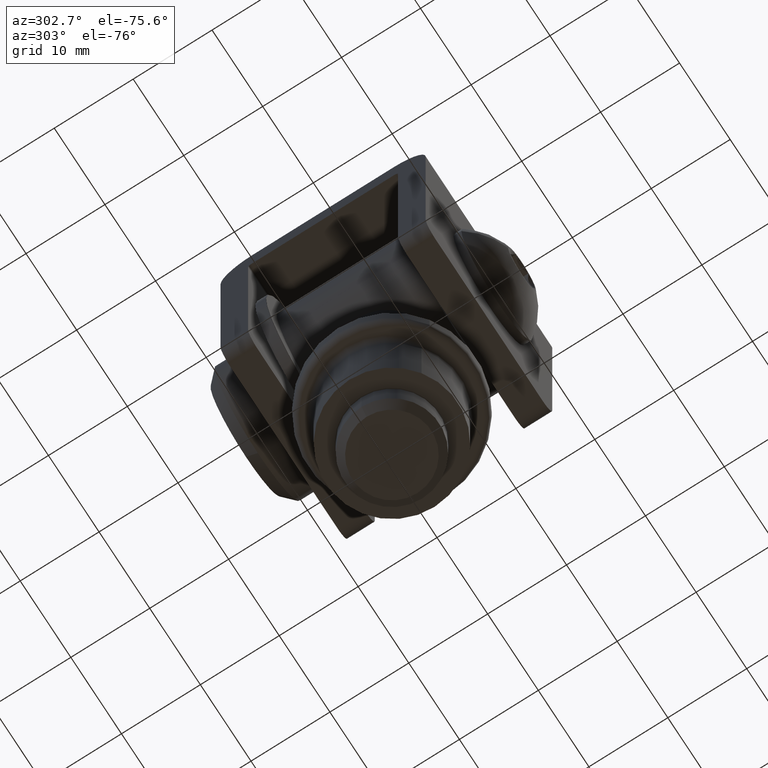
[diagram: clean part render]
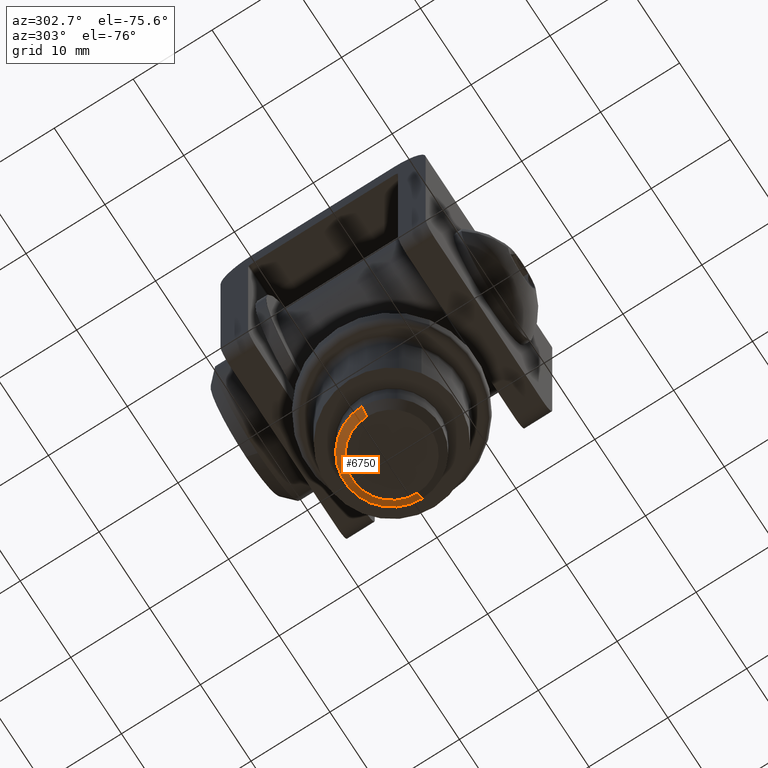
[diagram: same view with one face highlighted and labeled with its STEP entity id]
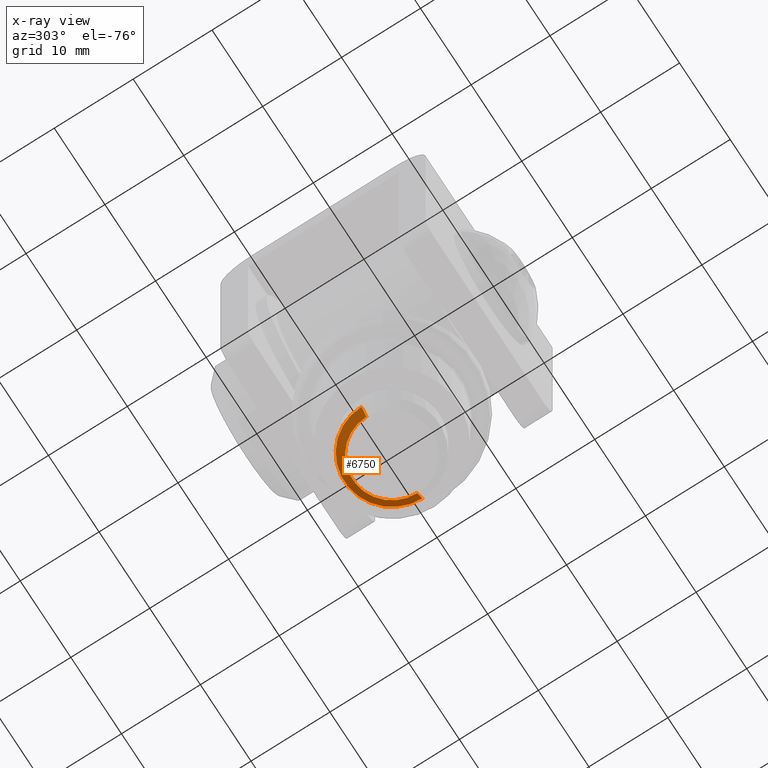
[diagram: x-ray of the same camera — body ghosted, the highlighted face saturated]
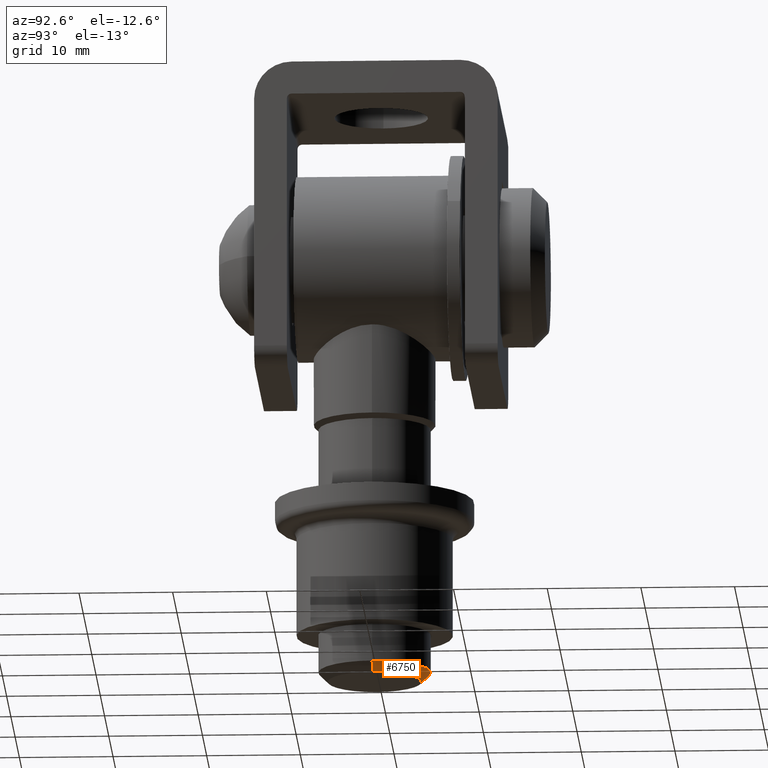
[diagram: same view with one face highlighted and labeled with its STEP entity id]
A machine part, auxiliary view. The second image highlights one B-rep face of the part: STEP entity #6750.
The next image is the same camera in x-ray: the body ghosted, the highlighted face saturated — about 0% of this face is hidden behind the body in this view.
A second angle (auxiliary view) of the same face is appended — the face is thin or edge-on in the first view.
In plain terms, the highlighted conical surface has half-angle 45 deg.
Its self-contained STEP definition (entity closure, byte-faithful):
#245 = CIRCLE ( 'NONE', #12365, 4.999999999999984900 ) ;
#518 = DIRECTION ( 'NONE',  ( 1.000000000000000000, 0.0000000000000000000, 0.0000000000000000000 ) ) ;
#570 = DIRECTION ( 'NONE',  ( -0.7071067811865531200, 8.659560562355001900E-017, 0.7071067811865420200 ) ) ;
#625 = CARTESIAN_POINT ( 'NONE',  ( 4.999999999999984900, 0.0000000000000000000, -45.10000000000000100 ) ) ;
#1516 = CARTESIAN_POINT ( 'NONE',  ( -6.000000000000000900, 0.0000000000000000000, -44.10000000000000100 ) ) ;
#1639 = CARTESIAN_POINT ( 'NONE',  ( -6.000000000000000900, 7.347880794884120700E-016, -44.10000000000000100 ) ) ;
#1670 = VECTOR ( 'NONE', #13945, 999.9999999999998900 ) ;
#1929 = DIRECTION ( 'NONE',  ( -0.0000000000000000000, -0.0000000000000000000, -1.000000000000000000 ) ) ;
#1966 = CONICAL_SURFACE ( 'NONE', #10739, 6.000000000000000900, 0.7853981633974560500 ) ;
#2714 = ORIENTED_EDGE ( 'NONE', *, *, #6615, .T. ) ;
#2807 = CARTESIAN_POINT ( 'NONE',  ( 6.000000000000000900, 0.0000000000000000000, -44.10000000000000100 ) ) ;
#3345 = ORIENTED_EDGE ( 'NONE', *, *, #13951, .F. ) ;
#3375 = EDGE_CURVE ( 'NONE', #9957, #13015, #245, .T. ) ;
#3918 = CARTESIAN_POINT ( 'NONE',  ( 0.0000000000000000000, 0.0000000000000000000, -44.10000000000000100 ) ) ;
#4103 = DIRECTION ( 'NONE',  ( -0.0000000000000000000, -0.0000000000000000000, 1.000000000000000000 ) ) ;
#4124 = EDGE_LOOP ( 'NONE', ( #12568, #2714, #8823, #3345 ) ) ;
#4312 = LINE ( 'NONE', #2807, #1670 ) ;
#5144 = CARTESIAN_POINT ( 'NONE',  ( 0.0000000000000000000, 0.0000000000000000000, -44.10000000000000100 ) ) ;
#5957 = LINE ( 'NONE', #1639, #13627 ) ;
#6615 = EDGE_CURVE ( 'NONE', #9957, #12499, #5957, .T. ) ;
#6750 = ADVANCED_FACE ( 'NONE', ( #11508 ), #1966, .T. ) ;
#7475 = DIRECTION ( 'NONE',  ( 1.000000000000000000, 0.0000000000000000000, 0.0000000000000000000 ) ) ;
#8577 = CARTESIAN_POINT ( 'NONE',  ( 0.0000000000000000000, 0.0000000000000000000, -45.10000000000000100 ) ) ;
#8823 = ORIENTED_EDGE ( 'NONE', *, *, #13986, .F. ) ;
#9580 = DIRECTION ( 'NONE',  ( 1.000000000000000000, 0.0000000000000000000, 0.0000000000000000000 ) ) ;
#9726 = VERTEX_POINT ( 'NONE', #12826 ) ;
#9840 = CARTESIAN_POINT ( 'NONE',  ( -4.999999999999984900, 6.735557395310433100E-016, -45.10000000000000100 ) ) ;
#9957 = VERTEX_POINT ( 'NONE', #9840 ) ;
#10739 = AXIS2_PLACEMENT_3D ( 'NONE', #5144, #4103, #518 ) ;
#11165 = AXIS2_PLACEMENT_3D ( 'NONE', #3918, #13903, #9580 ) ;
#11508 = FACE_OUTER_BOUND ( 'NONE', #4124, .T. ) ;
#12365 = AXIS2_PLACEMENT_3D ( 'NONE', #8577, #1929, #7475 ) ;
#12499 = VERTEX_POINT ( 'NONE', #1516 ) ;
#12568 = ORIENTED_EDGE ( 'NONE', *, *, #3375, .F. ) ;
#12826 = CARTESIAN_POINT ( 'NONE',  ( 6.000000000000000900, 7.347880794884120700E-016, -44.10000000000000100 ) ) ;
#13015 = VERTEX_POINT ( 'NONE', #625 ) ;
#13143 = CIRCLE ( 'NONE', #11165, 6.000000000000000900 ) ;
#13627 = VECTOR ( 'NONE', #570, 999.9999999999998900 ) ;
#13903 = DIRECTION ( 'NONE',  ( -0.0000000000000000000, -0.0000000000000000000, 1.000000000000000000 ) ) ;
#13945 = DIRECTION ( 'NONE',  ( 0.7071067811865531200, 0.0000000000000000000, 0.7071067811865420200 ) ) ;
#13951 = EDGE_CURVE ( 'NONE', #13015, #9726, #4312, .T. ) ;
#13986 = EDGE_CURVE ( 'NONE', #9726, #12499, #13143, .T. ) ;